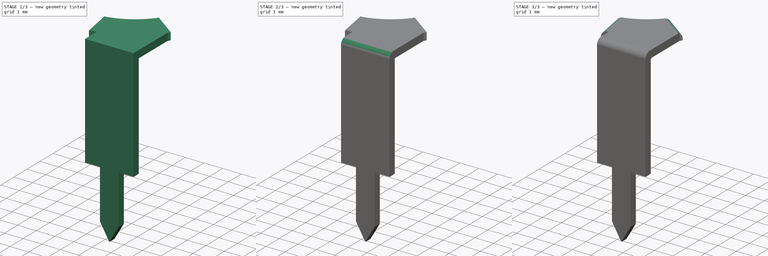
[diagram: build sequence overview — one tinted view per stage of 3, left to right]
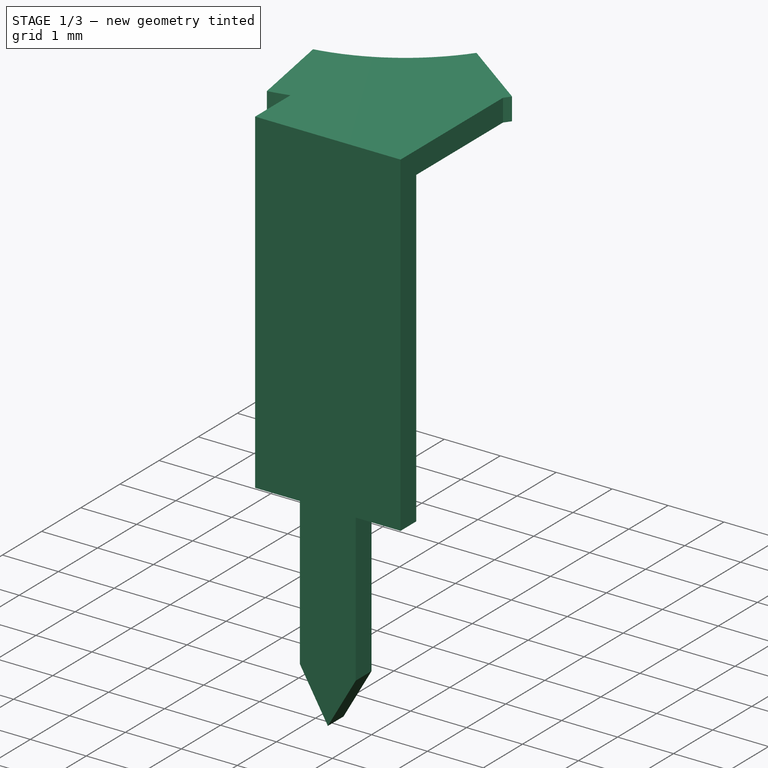
[diagram: stage 1 of 3 — iso view after this stage's code; geometry added in this stage tinted green]
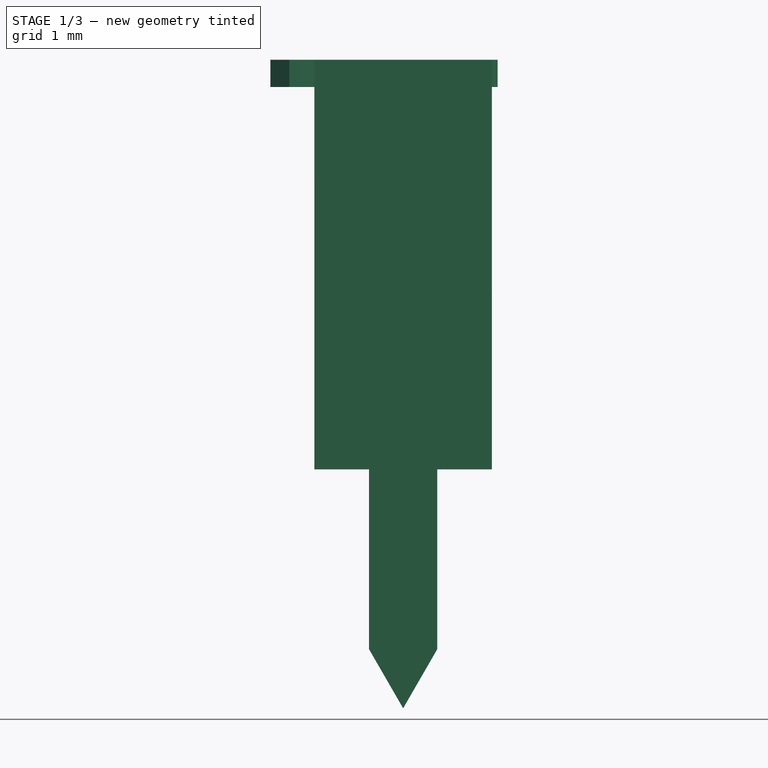
[diagram: stage 1 of 3 — front view after this stage's code; geometry added in this stage tinted green]
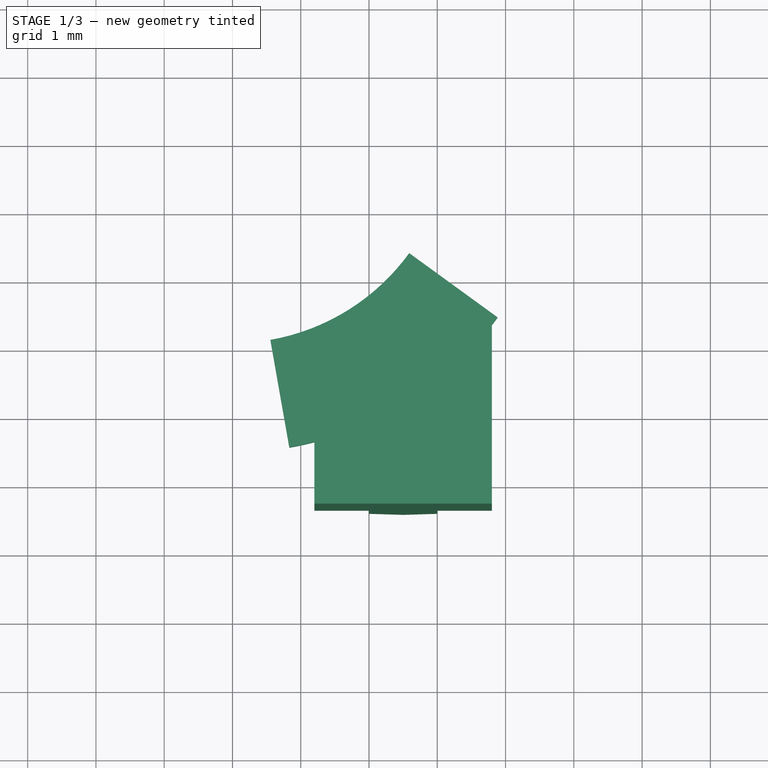
[diagram: stage 1 of 3 — top view after this stage's code; geometry added in this stage tinted green]
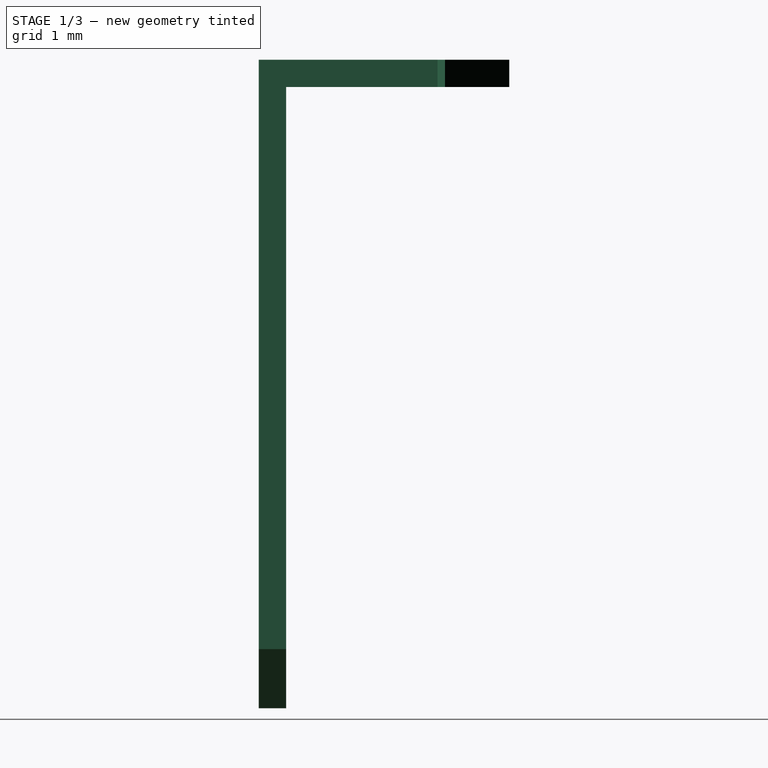
[diagram: stage 1 of 3 — right view after this stage's code; geometry added in this stage tinted green]
FCSTD DOCUMENT  (FreeCAD 0.16R6703 (Git))
Label: Final
License: CreativeCommons Attribution-ShareAlike
LicenseURL: http://creativecommons.org/licenses/by-sa/4.0/
objects: Part::Fillet×3, Sketcher::SketchObject×2, PartDesign::Pad×2, Part::MultiFuse×1
note: 10 computed .brp shape members not serialized (recipe doc carries the construction recipe); baked Part::Feature solids carry a one-line shape summary decoded from their .brp

FEATURE [Sketcher::SketchObject] Sketch
  sketch-geometry (10):
    g0: ArcOfCircle CenterX=0 CenterY=5.15 CenterZ=0 NormalX=0 NormalY=0 NormalZ=1 Radius=3.2 StartAngle=4.88692 EndAngle=5.65487
    g1: ArcOfCircle CenterX=0 CenterY=5.15 CenterZ=0 NormalX=0 NormalY=0 NormalZ=1 Radius=4.8 StartAngle=4.88692 EndAngle=4.96507
    g2: LineSegment [constr] StartX=0 StartY=5.15 StartZ=0 EndX=3.88328 EndY=2.32863 EndZ=0
    g3: LineSegment [constr] StartX=0 StartY=5.15 StartZ=0 EndX=0.833511 EndY=0.422923 EndZ=0
    g4: LineSegment StartX=1.2 StartY=0.50242 StartZ=0 EndX=1.2 EndY=0 EndZ=0
    g5: LineSegment StartX=3.8 StartY=2.21742 StartZ=0 EndX=3.8 EndY=0 EndZ=0
    g6: LineSegment StartX=1.2 StartY=0 StartZ=0 EndX=3.8 EndY=0 EndZ=0
    g7: LineSegment StartX=2.58885 StartY=3.26909 StartZ=0 EndX=3.88328 EndY=2.32863 EndZ=0
    g8: LineSegment StartX=0.555674 StartY=1.99862 StartZ=0 EndX=0.833511 EndY=0.422923 EndZ=0
    g9: ArcOfCircle CenterX=0 CenterY=5.15 CenterZ=0 NormalX=0 NormalY=0 NormalZ=1 Radius=4.8 StartAngle=5.62592 EndAngle=5.65487
  constraints (29):
    c: PointOnObject(g0,g-2)
    c: Coincident(g1,g0)
    c: Coincident(g2,g0)
    c: Coincident(g2,g9)
    c: Coincident(g3,g0)
    c: Coincident(g3,g1)
    c: DistanceY(g-1,g0) = 5.15
    c: Radius(g1) = 4.8
    c: Angle(g3,g-2) = 2.96706
    c: Angle(g2,g-2) = -4.08407
    c: Radius(g0) = 3.2
    c: PointOnObject(g0,g3)
    c: PointOnObject(g0,g2)
    c: PointOnObject(g4,g-1)
    c: Vertical(g4)
    c: PointOnObject(g5,g-1)
    c: Vertical(g5)
    c: Coincident(g6,g4)
    c: Coincident(g6,g5)
    c: DistanceX(g6,g6) = 2.6
    c: DistanceX(g-1,g4) = 1.2
    c: Coincident(g7,g0)
    c: Coincident(g7,g9)
    c: Coincident(g8,g0)
    c: Coincident(g8,g1)
    c: Equal(g1,g9)
    c: Coincident(g1,g4)
    c: Coincident(g9,g5)
    c: Coincident(g1,g9)
FEATURE [PartDesign::Pad] Pad
  Length = 0.4
  Length2 = 100
  Sketch = -> Sketch
  Type = 0
FEATURE [Sketcher::SketchObject] Sketch001
  Placement = pos=(0,0,0) rot=(1,0,0;1.5708rad)
  Support = -> Pad [Face6]
  sketch-geometry (9):
    g0: LineSegment StartX=1.2 StartY=0.4 StartZ=0 EndX=1.2 EndY=-5.6 EndZ=0
    g1: LineSegment StartX=1.2 StartY=-5.6 StartZ=0 EndX=2 EndY=-5.6 EndZ=0
    g2: LineSegment StartX=2 StartY=-5.6 StartZ=0 EndX=2 EndY=-8.23397 EndZ=0
    g3: LineSegment StartX=2 StartY=-8.23397 StartZ=0 EndX=2.5 EndY=-9.1 EndZ=0
    g4: LineSegment StartX=2.5 StartY=-9.1 StartZ=0 EndX=3 EndY=-8.23397 EndZ=0
    g5: LineSegment StartX=3 StartY=-8.23397 StartZ=0 EndX=3 EndY=-5.6 EndZ=0
    g6: LineSegment StartX=3 StartY=-5.6 StartZ=0 EndX=3.8 EndY=-5.6 EndZ=0
    g7: LineSegment StartX=3.8 StartY=-5.6 StartZ=0 EndX=3.8 EndY=0.4 EndZ=0
    g8: LineSegment StartX=3.8 StartY=0.4 StartZ=0 EndX=1.2 EndY=0.4 EndZ=0
  constraints (27):
    c: Vertical(g0)
    c: Coincident(g0,g1)
    c: Horizontal(g1)
    c: Coincident(g1,g2)
    c: Vertical(g2)
    c: Coincident(g2,g3)
    c: Coincident(g3,g4)
    c: Coincident(g4,g5)
    c: Vertical(g5)
    c: Coincident(g5,g6)
    c: Horizontal(g6)
    c: Coincident(g6,g7)
    c: Vertical(g7)
    c: Coincident(g7,g8)
    c: Coincident(g8,g0)
    c: Horizontal(g8)
    c: DistanceX(g8,g8) = 2.6
    c: DistanceX(g-1,g0) = 1.2
    c: DistanceY(g-1,g7) = 0.4
    c: Equal(g1,g6)
    c: DistanceX(g1,g1) = 0.8
    c: Equal(g3,g4)
    c: Angle(g4,g3) = 1.0472
    c: Equal(g2,g5)
    c: Equal(g0,g7)
    c: DistanceY(g3,g6) = 3.5
    c: DistanceY(g6,g7) = 6
FEATURE [PartDesign::Pad] Pad001
  Length = 0.4
  Length2 = 100
  Sketch = -> Sketch001
  Type = 0
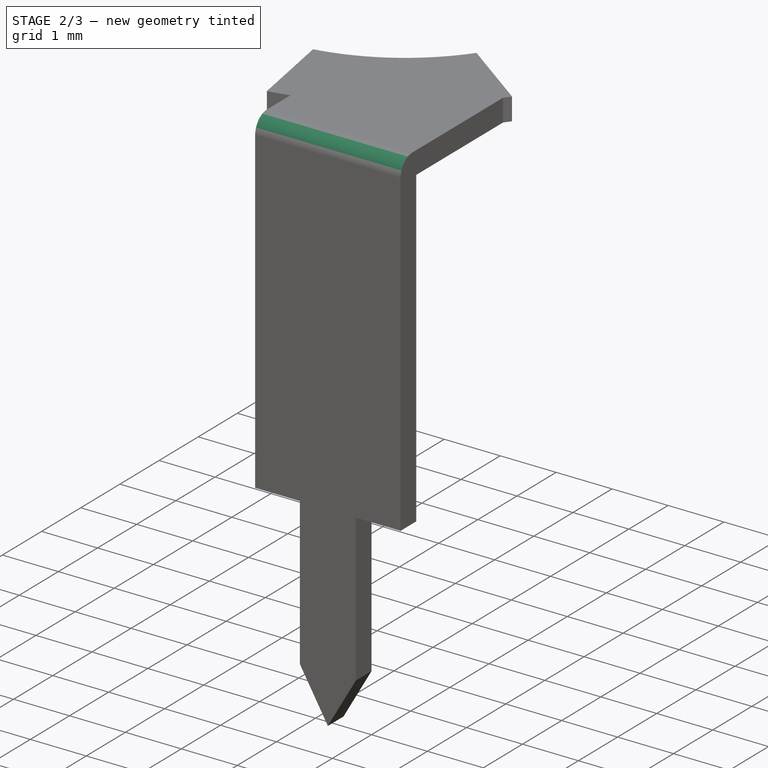
[diagram: stage 2 of 3 — iso view after this stage's code; geometry added in this stage tinted green]
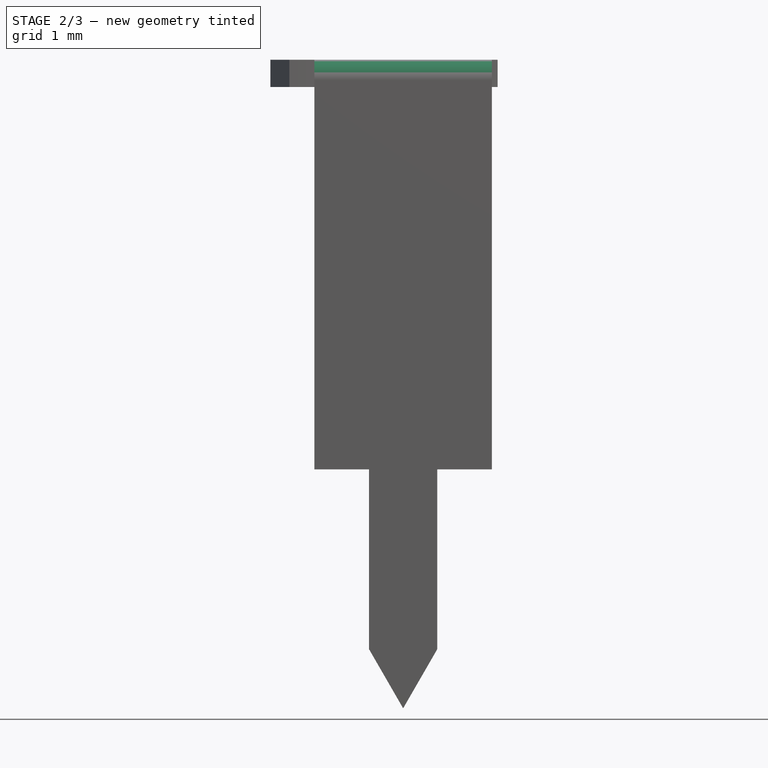
[diagram: stage 2 of 3 — front view after this stage's code; geometry added in this stage tinted green]
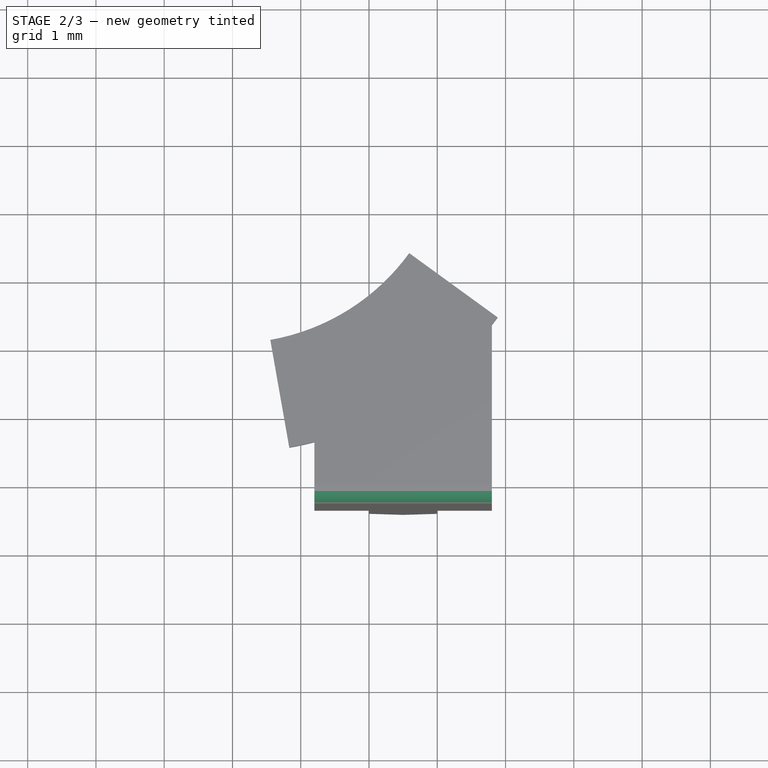
[diagram: stage 2 of 3 — top view after this stage's code; geometry added in this stage tinted green]
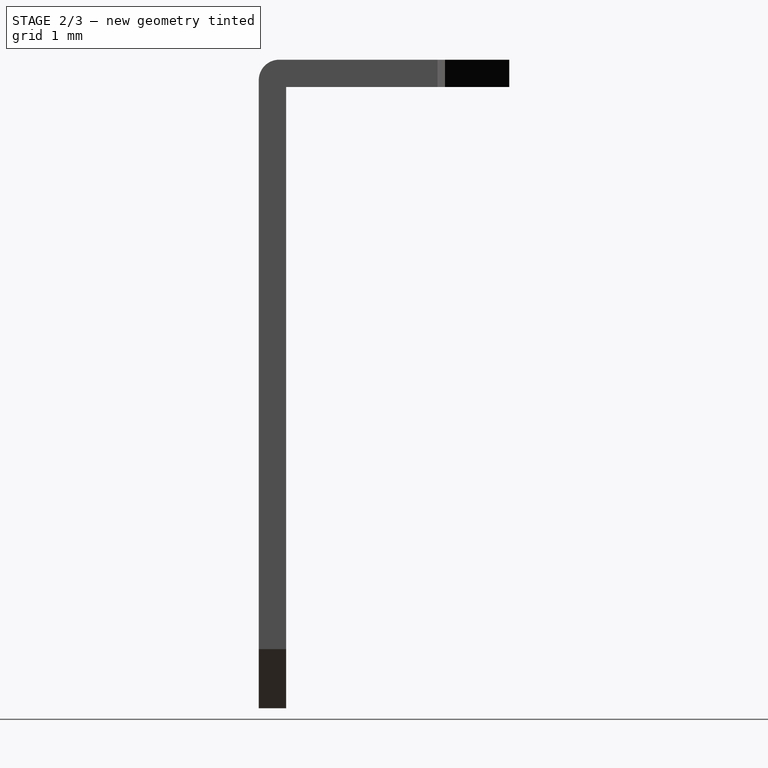
[diagram: stage 2 of 3 — right view after this stage's code; geometry added in this stage tinted green]
FEATURE [Part::MultiFuse] Fusion
  Shapes = -> [Pad001,Pad]
FEATURE [Part::Fillet] Fillet
  Base = -> Fusion
  Edges = 1 edges r=0.3: [Edge21]
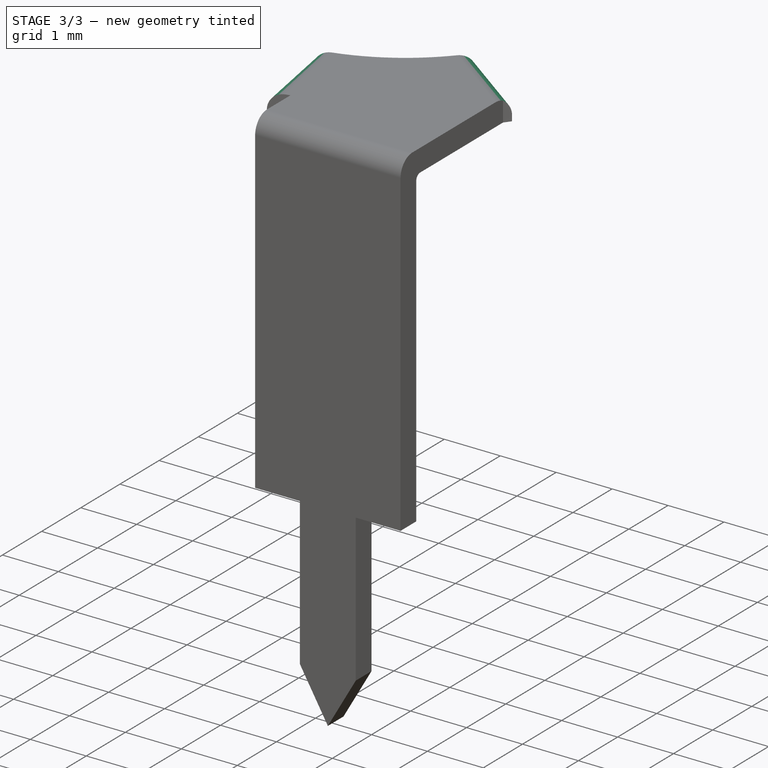
[diagram: stage 3 of 3 — iso view after this stage's code; geometry added in this stage tinted green]
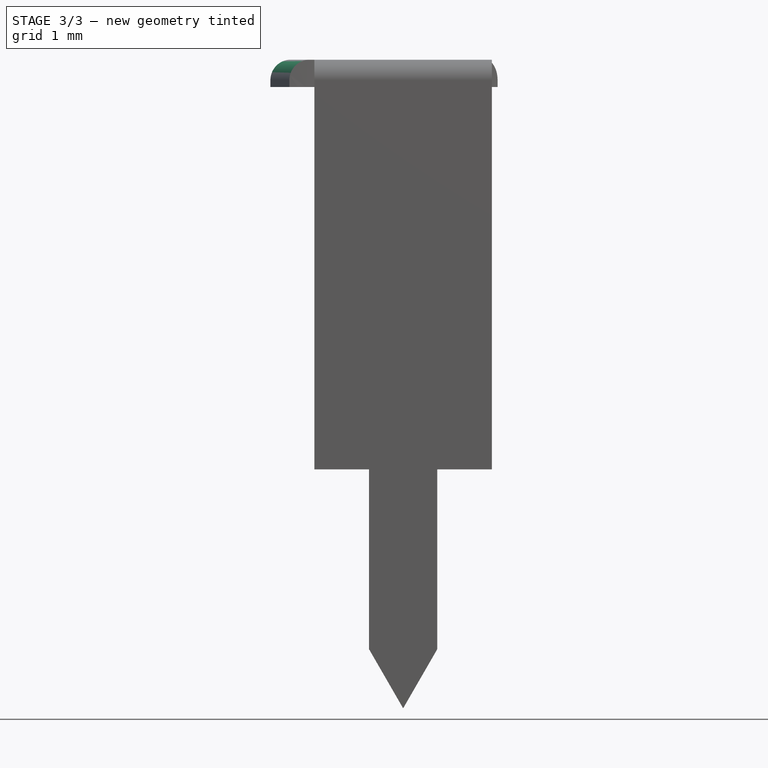
[diagram: stage 3 of 3 — front view after this stage's code; geometry added in this stage tinted green]
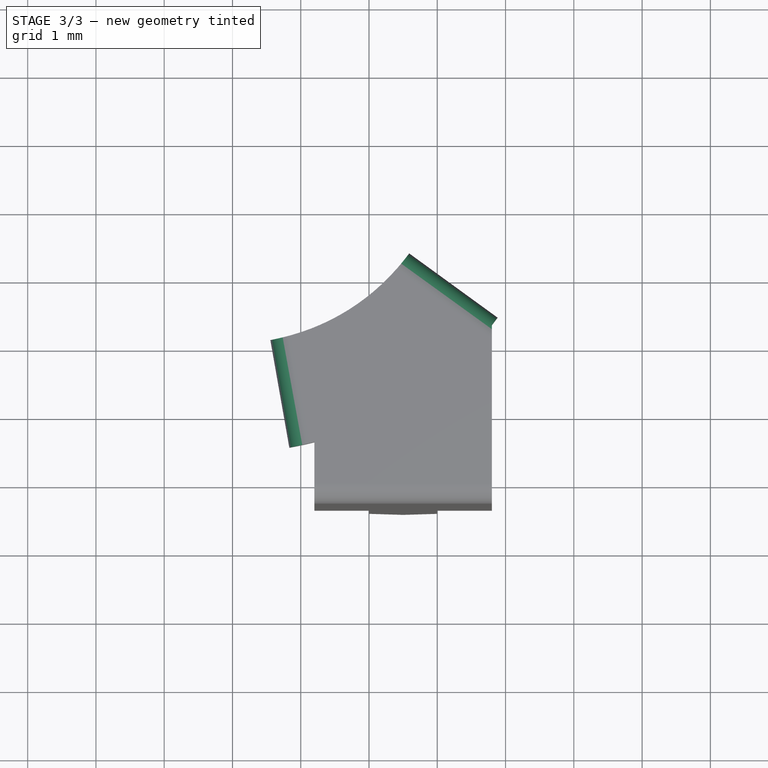
[diagram: stage 3 of 3 — top view after this stage's code; geometry added in this stage tinted green]
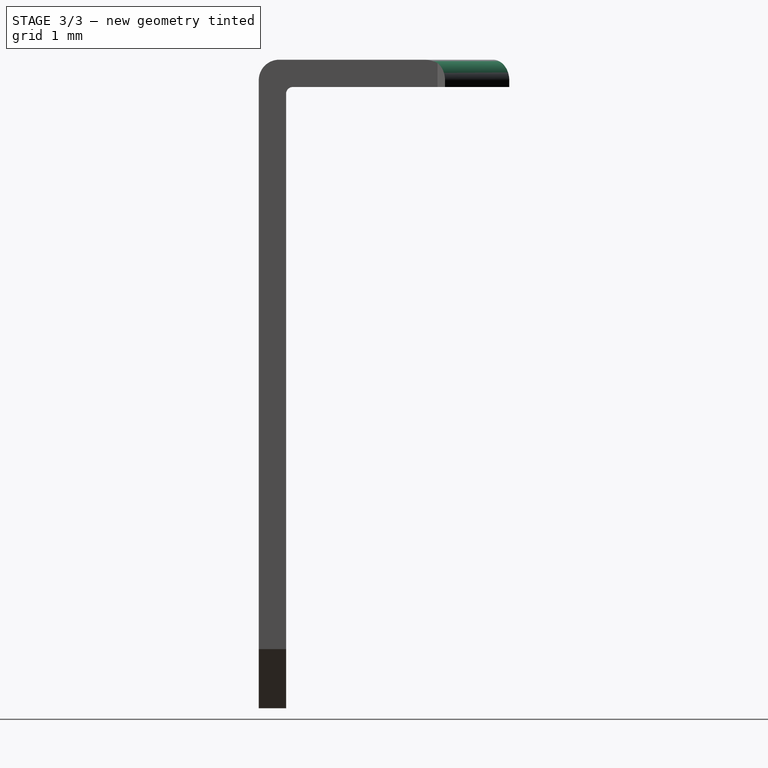
[diagram: stage 3 of 3 — right view after this stage's code; geometry added in this stage tinted green]
FEATURE [Part::Fillet] Fillet001
  Base = -> Fillet
  Edges = 1 edges r=0.1: [Edge45]
FEATURE [Part::Fillet] Fillet002
  Base = -> Fillet001
  Edges = 2 edges r=0.3: [Edge29,Edge32]
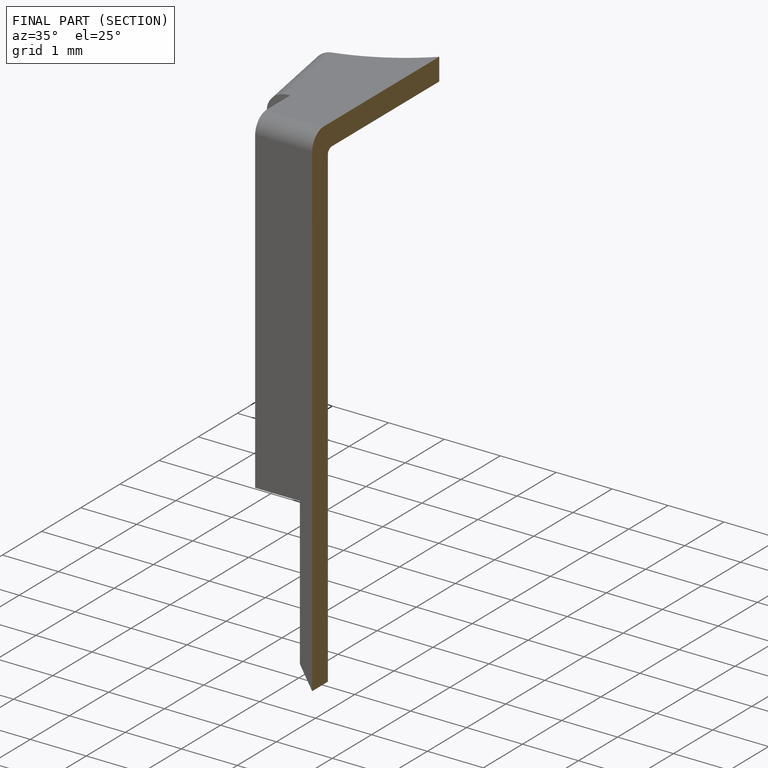
[diagram: finished part — half-section view (interior)]
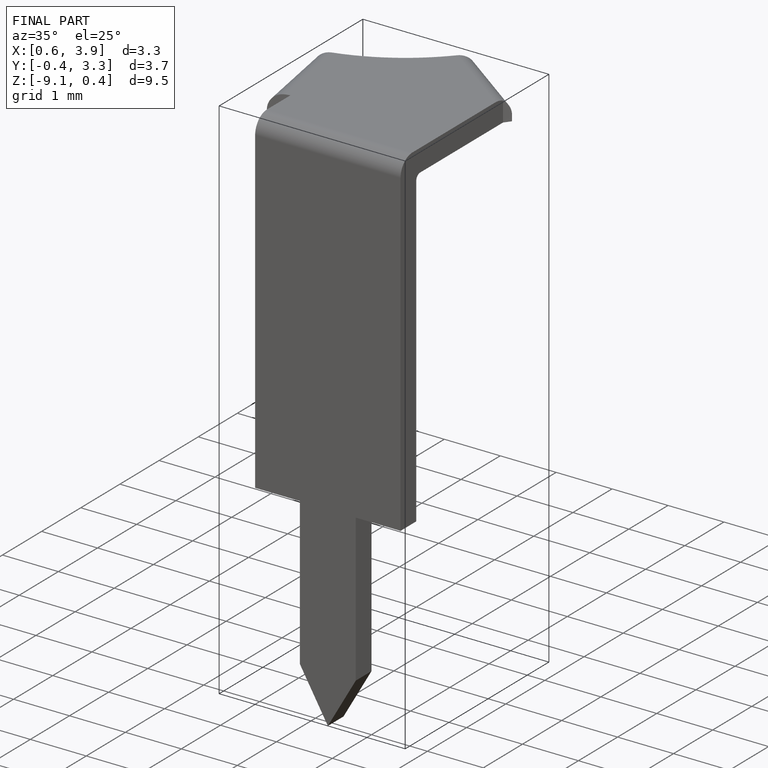
[diagram: finished part — iso view with bounding-box wireframe]
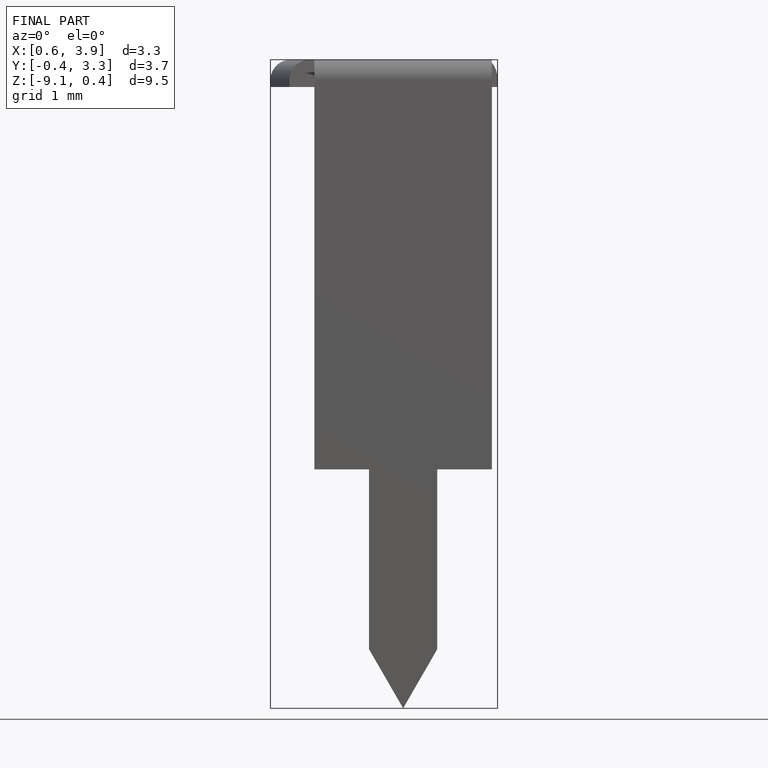
[diagram: finished part — front view with bounding-box wireframe]
